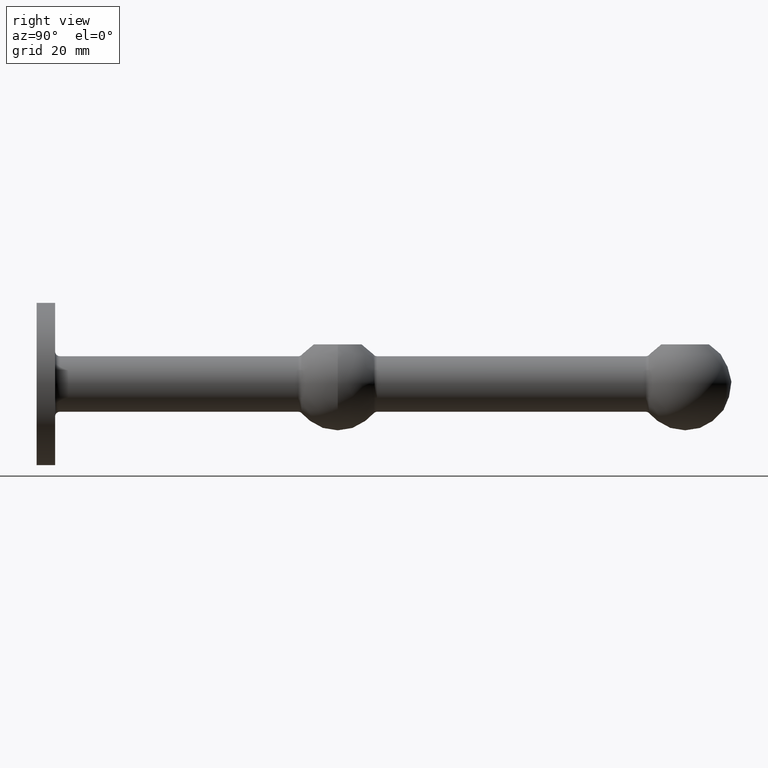
[diagram: clean part render]
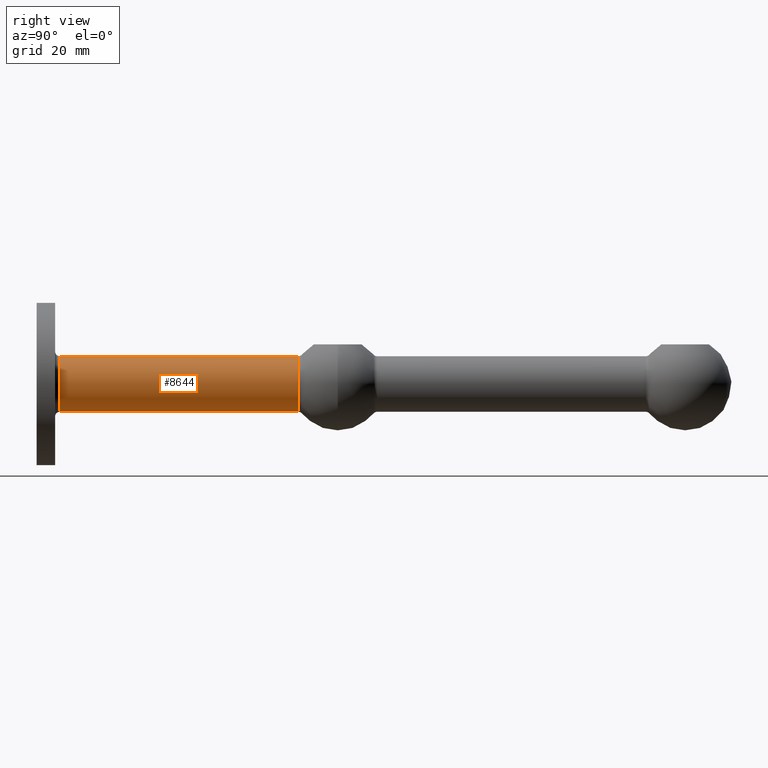
[diagram: same view with one face highlighted and labeled with its STEP entity id]
A machine part, right view. The second image highlights one B-rep face of the part: STEP entity #8644.
In plain terms, the highlighted cylindrical surface (bore or boss wall) has radius 6 mm, axis along (-0, -1, -0).
Its self-contained STEP definition (entity closure, byte-faithful):
#838 = CIRCLE ( 'NONE', #10241, 6.000000000000001776 ) ;
#1005 = FACE_OUTER_BOUND ( 'NONE', #11651, .T. ) ;
#1458 = CARTESIAN_POINT ( 'NONE',  ( 0.000000000000000000, 0.000000000000000000, 0.000000000000000000 ) ) ;
#1572 = DIRECTION ( 'NONE',  ( -0.000000000000000000, -1.000000000000000000, -0.000000000000000000 ) ) ;
#3449 = CARTESIAN_POINT ( 'NONE',  ( 0.000000000000000000, 56.51471862576143224, 6.000000000000001776 ) ) ;
#3570 = DIRECTION ( 'NONE',  ( 0.000000000000000000, 0.000000000000000000, 1.000000000000000000 ) ) ;
#4444 = CARTESIAN_POINT ( 'NONE',  ( 0.000000000000000000, 5.000000000000000000, 6.000000000000001776 ) ) ;
#4999 = VERTEX_POINT ( 'NONE', #3449 ) ;
#5325 = AXIS2_PLACEMENT_3D ( 'NONE', #1458, #5361, #8186 ) ;
#5361 = DIRECTION ( 'NONE',  ( -0.000000000000000000, -1.000000000000000000, -0.000000000000000000 ) ) ;
#5395 = ORIENTED_EDGE ( 'NONE', *, *, #9882, .T. ) ;
#6463 = CARTESIAN_POINT ( 'NONE',  ( 0.000000000000000000, 5.000000000000000000, 0.000000000000000000 ) ) ;
#7134 = AXIS2_PLACEMENT_3D ( 'NONE', #8340, #1572, #3570 ) ;
#8186 = DIRECTION ( 'NONE',  ( 0.000000000000000000, 0.000000000000000000, -1.000000000000000000 ) ) ;
#8340 = CARTESIAN_POINT ( 'NONE',  ( 0.000000000000000000, 56.51471862576143224, 0.000000000000000000 ) ) ;
#8426 = DIRECTION ( 'NONE',  ( 0.000000000000000000, 1.000000000000000000, 0.000000000000000000 ) ) ;
#8483 = ORIENTED_EDGE ( 'NONE', *, *, #12386, .T. ) ;
#8644 = ADVANCED_FACE ( 'NONE', ( #10246, #1005 ), #11622, .T. ) ;
#9401 = DIRECTION ( 'NONE',  ( 0.000000000000000000, 0.000000000000000000, 1.000000000000000000 ) ) ;
#9882 = EDGE_CURVE ( 'NONE', #11114, #11114, #838, .T. ) ;
#10241 = AXIS2_PLACEMENT_3D ( 'NONE', #6463, #8426, #9401 ) ;
#10246 = FACE_OUTER_BOUND ( 'NONE', #10934, .T. ) ;
#10934 = EDGE_LOOP ( 'NONE', ( #8483 ) ) ;
#11114 = VERTEX_POINT ( 'NONE', #4444 ) ;
#11127 = CIRCLE ( 'NONE', #7134, 6.000000000000001776 ) ;
#11622 = CYLINDRICAL_SURFACE ( 'NONE', #5325, 6.000000000000001776 ) ;
#11651 = EDGE_LOOP ( 'NONE', ( #5395 ) ) ;
#12386 = EDGE_CURVE ( 'NONE', #4999, #4999, #11127, .T. ) ;